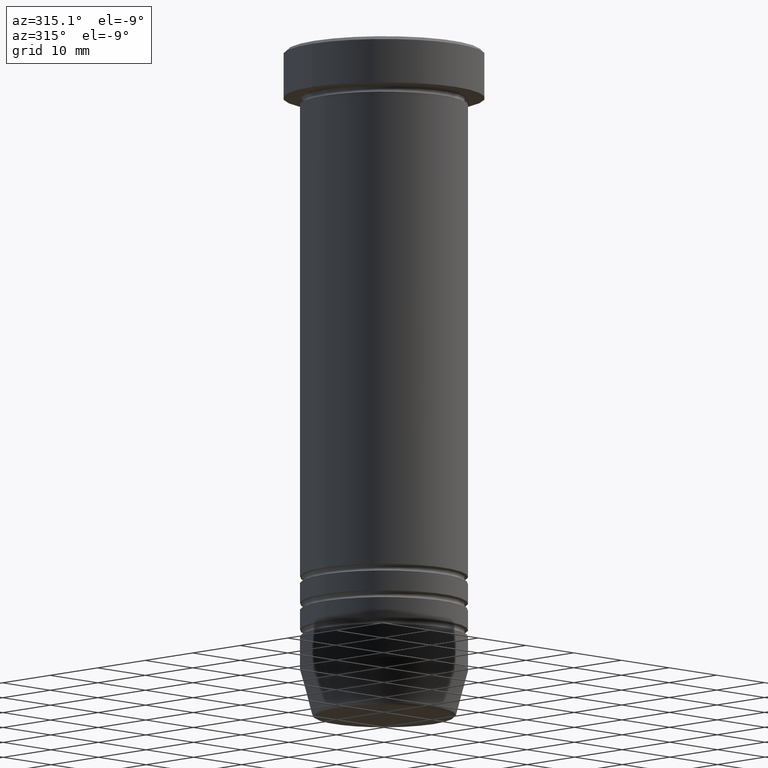
[diagram: clean part render]
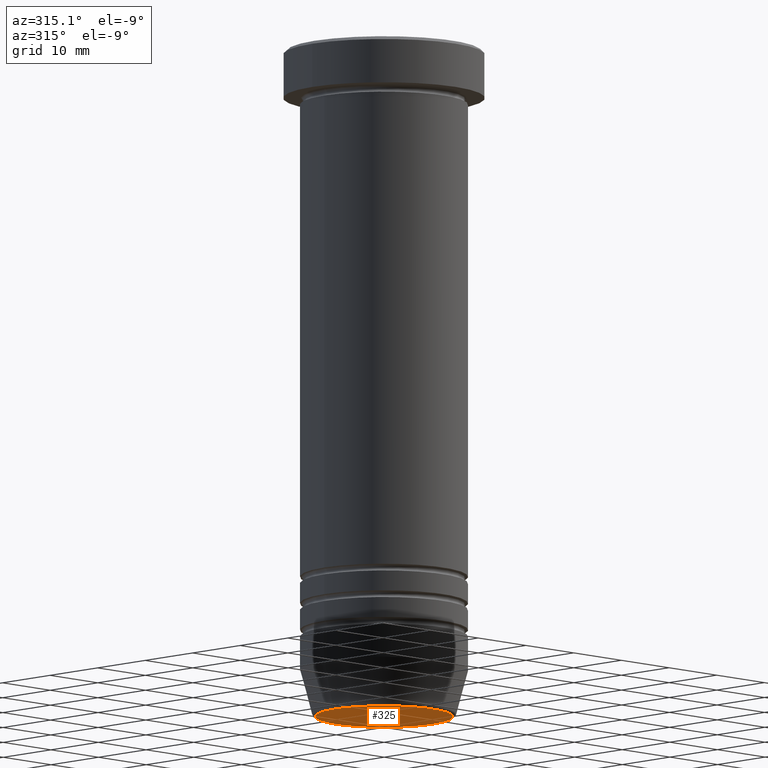
[diagram: same view with one face highlighted and labeled with its STEP entity id]
A machine part, auxiliary view. The second image highlights one B-rep face of the part: STEP entity #325.
In plain terms, the highlighted planar face has unit normal (0, -0, 1).
Its self-contained STEP definition (entity closure, byte-faithful):
#37 = CARTESIAN_POINT ( 'NONE',  ( 0.000000000000000000, 0.000000000000000000, -99.99999999999998579 ) ) ;
#56 = ORIENTED_EDGE ( 'NONE', *, *, #548, .T. ) ;
#70 = CARTESIAN_POINT ( 'NONE',  ( 0.000000000000000000, 6.123233995736764507E-15, -99.99999999999998579 ) ) ;
#101 = DIRECTION ( 'NONE',  ( 0.000000000000000000, 0.000000000000000000, -1.000000000000000000 ) ) ;
#195 = VERTEX_POINT ( 'NONE', #1010 ) ;
#213 = AXIS2_PLACEMENT_3D ( 'NONE', #272, #848, #267 ) ;
#242 = CARTESIAN_POINT ( 'NONE',  ( -10.24069215899265828, 1.283696036640842573E-15, -99.99999999999998579 ) ) ;
#267 = DIRECTION ( 'NONE',  ( 1.000000000000000000, 0.000000000000000000, 0.000000000000000000 ) ) ;
#272 = CARTESIAN_POINT ( 'NONE',  ( 0.000000000000000000, 0.000000000000000000, -99.99999999999998579 ) ) ;
#325 = ADVANCED_FACE ( 'NONE', ( #717 ), #1049, .F. ) ;
#342 = VERTEX_POINT ( 'NONE', #242 ) ;
#350 = CIRCLE ( 'NONE', #213, 10.24069215899265828 ) ;
#405 = ORIENTED_EDGE ( 'NONE', *, *, #541, .T. ) ;
#407 = DIRECTION ( 'NONE',  ( 1.000000000000000000, 0.000000000000000000, 0.000000000000000000 ) ) ;
#427 = DIRECTION ( 'NONE',  ( 1.000000000000000000, 0.000000000000000000, 0.000000000000000000 ) ) ;
#489 = AXIS2_PLACEMENT_3D ( 'NONE', #37, #101, #427 ) ;
#541 = EDGE_CURVE ( 'NONE', #195, #342, #350, .T. ) ;
#548 = EDGE_CURVE ( 'NONE', #342, #195, #953, .T. ) ;
#711 = EDGE_LOOP ( 'NONE', ( #405, #56 ) ) ;
#717 = FACE_OUTER_BOUND ( 'NONE', #711, .T. ) ;
#730 = DIRECTION ( 'NONE',  ( 0.000000000000000000, -0.000000000000000000, 1.000000000000000000 ) ) ;
#848 = DIRECTION ( 'NONE',  ( 0.000000000000000000, 0.000000000000000000, -1.000000000000000000 ) ) ;
#953 = CIRCLE ( 'NONE', #489, 10.24069215899265828 ) ;
#986 = AXIS2_PLACEMENT_3D ( 'NONE', #70, #730, #407 ) ;
#1010 = CARTESIAN_POINT ( 'NONE',  ( 10.24069215899265828, 0.000000000000000000, -99.99999999999998579 ) ) ;
#1049 = PLANE ( 'NONE',  #986 ) ;